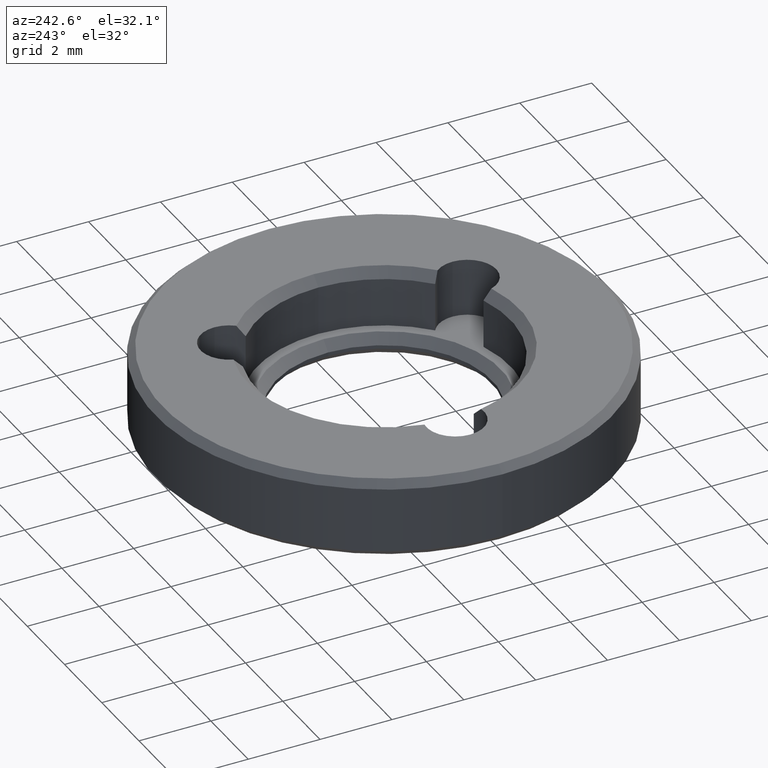
[diagram: clean part render]
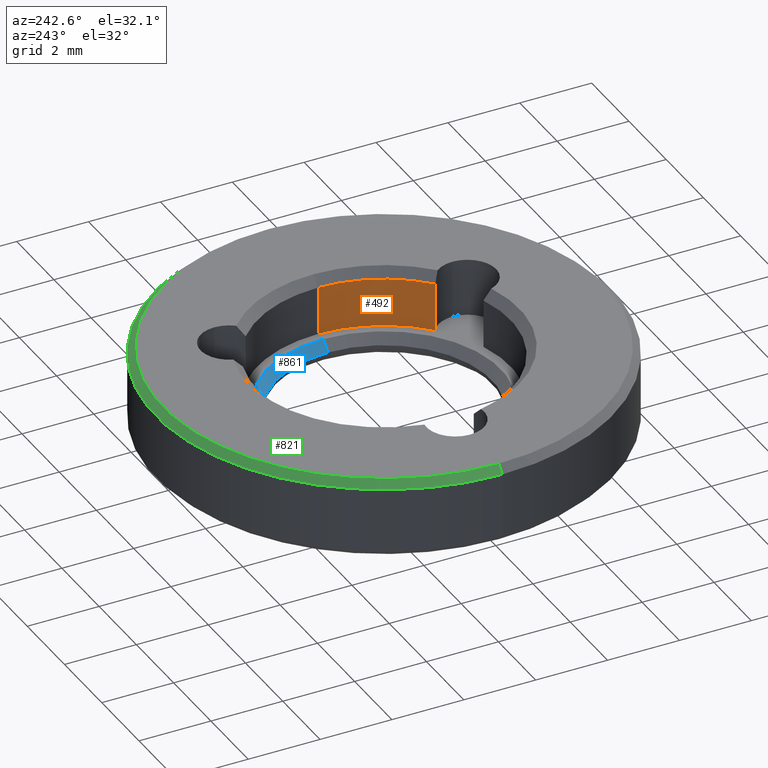
[diagram: same view with three faces highlighted in distinct colors, each labeled with its STEP entity id]
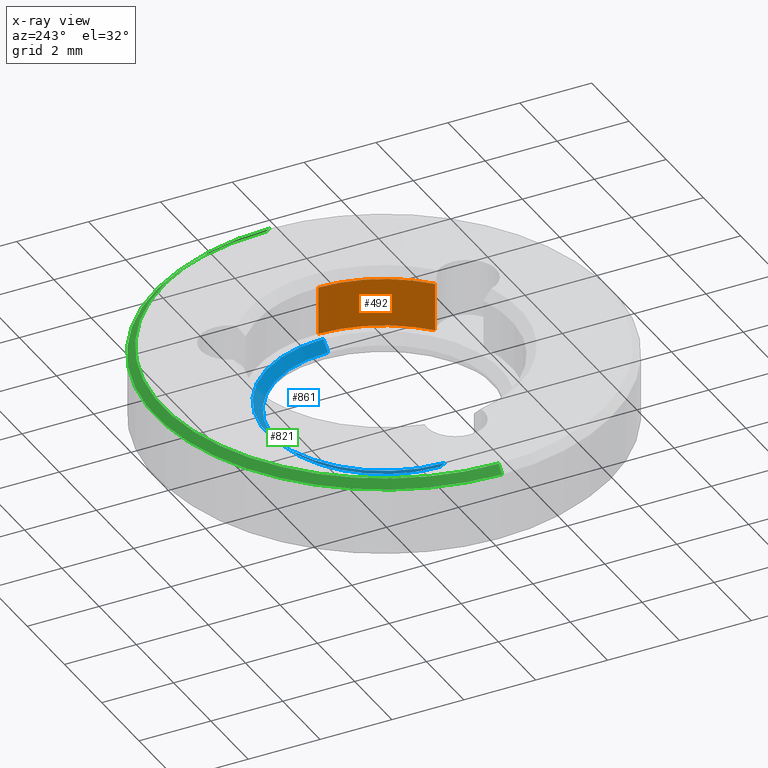
[diagram: x-ray of the same camera — body ghosted, the three highlighted faces saturated]
A machine part, auxiliary view with three faces highlighted in distinct colors.
The next image is the same camera in x-ray (body ghosted, the three faces saturated) — at least one of them is partly hidden behind the body in this view.
Their STEP definitions:

[orange] entity #492 — the highlighted cylindrical surface (partial cylindrical patch) has radius 3.525 mm, axis along (-0, -0, 1).
#5 = DIRECTION ( 'NONE',  ( -0.000000000000000000, -0.000000000000000000, 1.000000000000000000 ) ) ;
#32 = EDGE_LOOP ( 'NONE', ( #378, #752, #737, #315 ) ) ;
#66 = AXIS2_PLACEMENT_3D ( 'NONE', #629, #5, #797 ) ;
#74 = VERTEX_POINT ( 'NONE', #644 ) ;
#143 = DIRECTION ( 'NONE',  ( 0.000000000000000000, -0.000000000000000000, 1.000000000000000000 ) ) ;
#144 = EDGE_CURVE ( 'NONE', #773, #626, #501, .T. ) ;
#145 = CARTESIAN_POINT ( 'NONE',  ( 2.339961078470140343, -2.636324553473046617, 1.949999999999995959 ) ) ;
#154 = CARTESIAN_POINT ( 'NONE',  ( 2.339961078470140343, -2.636324553473046617, 1.400000000000000133 ) ) ;
#189 = CIRCLE ( 'NONE', #868, 3.524999999999999911 ) ;
#235 = CARTESIAN_POINT ( 'NONE',  ( 3.524999999999999911, 0.000000000000000000, 0.6000000000000000888 ) ) ;
#239 = CARTESIAN_POINT ( 'NONE',  ( 0.000000000000000000, 0.000000000000000000, 1.949999999999995959 ) ) ;
#263 = CARTESIAN_POINT ( 'NONE',  ( 0.000000000000000000, 0.000000000000000000, 0.6000000000000000888 ) ) ;
#277 = CARTESIAN_POINT ( 'NONE',  ( 3.524999999999999911, 0.000000000000000000, 0.6000000000000000888 ) ) ;
#282 = EDGE_CURVE ( 'NONE', #626, #74, #189, .T. ) ;
#291 = VERTEX_POINT ( 'NONE', #235 ) ;
#315 = ORIENTED_EDGE ( 'NONE', *, *, #282, .T. ) ;
#357 = DIRECTION ( 'NONE',  ( -0.000000000000000000, -0.000000000000000000, 1.000000000000000000 ) ) ;
#378 = ORIENTED_EDGE ( 'NONE', *, *, #481, .F. ) ;
#439 = EDGE_CURVE ( 'NONE', #773, #291, #760, .T. ) ;
#481 = EDGE_CURVE ( 'NONE', #291, #74, #639, .T. ) ;
#486 = CYLINDRICAL_SURFACE ( 'NONE', #66, 3.524999999999999911 ) ;
#492 = ADVANCED_FACE ( 'NONE', ( #799 ), #486, .F. ) ;
#494 = VECTOR ( 'NONE', #143, 1000.000000000000000 ) ;
#501 = LINE ( 'NONE', #154, #494 ) ;
#513 = DIRECTION ( 'NONE',  ( 0.000000000000000000, 0.000000000000000000, 1.000000000000000000 ) ) ;
#541 = DIRECTION ( 'NONE',  ( 0.000000000000000000, 0.000000000000000000, 1.000000000000000000 ) ) ;
#626 = VERTEX_POINT ( 'NONE', #145 ) ;
#629 = CARTESIAN_POINT ( 'NONE',  ( 0.000000000000000000, 0.000000000000000000, 0.6000000000000000888 ) ) ;
#639 = LINE ( 'NONE', #277, #740 ) ;
#644 = CARTESIAN_POINT ( 'NONE',  ( 3.524999999999999911, 0.000000000000000000, 1.949999999999995959 ) ) ;
#737 = ORIENTED_EDGE ( 'NONE', *, *, #144, .T. ) ;
#740 = VECTOR ( 'NONE', #357, 1000.000000000000000 ) ;
#747 = CARTESIAN_POINT ( 'NONE',  ( 2.339961078470140343, -2.636324553473046617, 0.6000000000000003109 ) ) ;
#752 = ORIENTED_EDGE ( 'NONE', *, *, #439, .F. ) ;
#760 = CIRCLE ( 'NONE', #777, 3.524999999999999911 ) ;
#773 = VERTEX_POINT ( 'NONE', #747 ) ;
#777 = AXIS2_PLACEMENT_3D ( 'NONE', #263, #541, #837 ) ;
#797 = DIRECTION ( 'NONE',  ( 1.000000000000000000, 0.000000000000000000, 0.000000000000000000 ) ) ;
#799 = FACE_OUTER_BOUND ( 'NONE', #32, .T. ) ;
#807 = DIRECTION ( 'NONE',  ( 1.000000000000000000, 0.000000000000000000, 0.000000000000000000 ) ) ;
#837 = DIRECTION ( 'NONE',  ( 1.000000000000000000, 0.000000000000000000, 0.000000000000000000 ) ) ;
#868 = AXIS2_PLACEMENT_3D ( 'NONE', #239, #513, #807 ) ;

[blue] entity #861 — the highlighted conical surface has half-angle 45 deg.
#4 = EDGE_CURVE ( 'NONE', #441, #583, #565, .T. ) ;
#82 = LINE ( 'NONE', #293, #319 ) ;
#83 = DIRECTION ( 'NONE',  ( 0.7071067811865524577, 0.000000000000000000, 0.7071067811865426878 ) ) ;
#92 = AXIS2_PLACEMENT_3D ( 'NONE', #718, #784, #432 ) ;
#160 = CIRCLE ( 'NONE', #512, 3.000000000000000444 ) ;
#170 = VECTOR ( 'NONE', #83, 1000.000000000000000 ) ;
#215 = CARTESIAN_POINT ( 'NONE',  ( 3.250000000000003109, 0.000000000000000000, 0.6000000000000000888 ) ) ;
#233 = ORIENTED_EDGE ( 'NONE', *, *, #4, .T. ) ;
#281 = CARTESIAN_POINT ( 'NONE',  ( -3.000000000000000444, 3.673940397442060361E-16, 0.3500000000000006994 ) ) ;
#293 = CARTESIAN_POINT ( 'NONE',  ( -3.000000000000000444, 3.673940397442060361E-16, 0.3500000000000006994 ) ) ;
#319 = VECTOR ( 'NONE', #560, 1000.000000000000000 ) ;
#337 = CONICAL_SURFACE ( 'NONE', #559, 3.000000000000000444, 0.7853981633974552734 ) ;
#338 = CARTESIAN_POINT ( 'NONE',  ( 0.000000000000000000, 0.000000000000000000, 0.3500000000000006994 ) ) ;
#340 = ORIENTED_EDGE ( 'NONE', *, *, #613, .F. ) ;
#347 = CARTESIAN_POINT ( 'NONE',  ( 3.000000000000000444, 0.000000000000000000, 0.3500000000000006994 ) ) ;
#432 = DIRECTION ( 'NONE',  ( 1.000000000000000000, 0.000000000000000000, 0.000000000000000000 ) ) ;
#441 = VERTEX_POINT ( 'NONE', #472 ) ;
#472 = CARTESIAN_POINT ( 'NONE',  ( 3.000000000000000444, 0.000000000000000000, 0.3500000000000006994 ) ) ;
#512 = AXIS2_PLACEMENT_3D ( 'NONE', #535, #530, #825 ) ;
#530 = DIRECTION ( 'NONE',  ( 0.000000000000000000, 0.000000000000000000, 1.000000000000000000 ) ) ;
#535 = CARTESIAN_POINT ( 'NONE',  ( 0.000000000000000000, 0.000000000000000000, 0.3500000000000006994 ) ) ;
#537 = EDGE_CURVE ( 'NONE', #664, #583, #585, .T. ) ;
#548 = FACE_OUTER_BOUND ( 'NONE', #845, .T. ) ;
#559 = AXIS2_PLACEMENT_3D ( 'NONE', #338, #843, #774 ) ;
#560 = DIRECTION ( 'NONE',  ( -0.7071067811865524577, 8.659560562354993255E-17, 0.7071067811865426878 ) ) ;
#565 = LINE ( 'NONE', #347, #170 ) ;
#583 = VERTEX_POINT ( 'NONE', #215 ) ;
#585 = CIRCLE ( 'NONE', #92, 3.250000000000003109 ) ;
#594 = ORIENTED_EDGE ( 'NONE', *, *, #537, .F. ) ;
#606 = VERTEX_POINT ( 'NONE', #281 ) ;
#613 = EDGE_CURVE ( 'NONE', #606, #664, #82, .T. ) ;
#652 = CARTESIAN_POINT ( 'NONE',  ( -3.250000000000003109, 3.980102097228901683E-16, 0.6000000000000000888 ) ) ;
#664 = VERTEX_POINT ( 'NONE', #652 ) ;
#685 = ORIENTED_EDGE ( 'NONE', *, *, #790, .F. ) ;
#718 = CARTESIAN_POINT ( 'NONE',  ( 0.000000000000000000, 0.000000000000000000, 0.6000000000000000888 ) ) ;
#774 = DIRECTION ( 'NONE',  ( 1.000000000000000000, 0.000000000000000000, 0.000000000000000000 ) ) ;
#784 = DIRECTION ( 'NONE',  ( -0.000000000000000000, -0.000000000000000000, -1.000000000000000000 ) ) ;
#790 = EDGE_CURVE ( 'NONE', #441, #606, #160, .T. ) ;
#825 = DIRECTION ( 'NONE',  ( 1.000000000000000000, 0.000000000000000000, 0.000000000000000000 ) ) ;
#843 = DIRECTION ( 'NONE',  ( 0.000000000000000000, 0.000000000000000000, 1.000000000000000000 ) ) ;
#845 = EDGE_LOOP ( 'NONE', ( #340, #685, #233, #594 ) ) ;
#861 = ADVANCED_FACE ( 'NONE', ( #548 ), #337, .F. ) ;

[green] entity #821 — the highlighted conical surface has half-angle 45 deg.
#21 = AXIS2_PLACEMENT_3D ( 'NONE', #623, #131, #475 ) ;
#59 = VERTEX_POINT ( 'NONE', #213 ) ;
#69 = ORIENTED_EDGE ( 'NONE', *, *, #299, .F. ) ;
#131 = DIRECTION ( 'NONE',  ( 0.000000000000000000, 0.000000000000000000, -1.000000000000000000 ) ) ;
#141 = EDGE_LOOP ( 'NONE', ( #69, #808, #661, #733 ) ) ;
#150 = CIRCLE ( 'NONE', #498, 6.349999999999999645 ) ;
#159 = CARTESIAN_POINT ( 'NONE',  ( 0.000000000000000000, 0.000000000000000000, 2.000000000000000444 ) ) ;
#213 = CARTESIAN_POINT ( 'NONE',  ( 6.149999999999999467, 7.654042494670954648E-16, 2.200000000000000178 ) ) ;
#217 = CIRCLE ( 'NONE', #739, 6.149999999999999467 ) ;
#296 = DIRECTION ( 'NONE',  ( 0.000000000000000000, 0.000000000000000000, -1.000000000000000000 ) ) ;
#299 = EDGE_CURVE ( 'NONE', #59, #308, #217, .T. ) ;
#308 = VERTEX_POINT ( 'NONE', #889 ) ;
#309 = DIRECTION ( 'NONE',  ( 0.000000000000000000, 0.000000000000000000, 1.000000000000000000 ) ) ;
#325 = LINE ( 'NONE', #609, #793 ) ;
#328 = DIRECTION ( 'NONE',  ( -0.7071067811865490160, 0.000000000000000000, -0.7071067811865459074 ) ) ;
#352 = CARTESIAN_POINT ( 'NONE',  ( 6.149999999999999467, 7.531577814756219106E-16, 2.200000000000000178 ) ) ;
#421 = LINE ( 'NONE', #352, #618 ) ;
#426 = EDGE_CURVE ( 'NONE', #308, #886, #325, .T. ) ;
#436 = DIRECTION ( 'NONE',  ( 1.000000000000000000, 0.000000000000000000, 0.000000000000000000 ) ) ;
#475 = DIRECTION ( 'NONE',  ( -1.000000000000000000, 0.000000000000000000, 0.000000000000000000 ) ) ;
#498 = AXIS2_PLACEMENT_3D ( 'NONE', #159, #296, #436 ) ;
#524 = CARTESIAN_POINT ( 'NONE',  ( 6.349999999999999645, 7.776507174585692163E-16, 2.000000000000000444 ) ) ;
#591 = DIRECTION ( 'NONE',  ( 1.000000000000000000, 0.000000000000000000, 0.000000000000000000 ) ) ;
#592 = CARTESIAN_POINT ( 'NONE',  ( -6.349999999999999645, 0.000000000000000000, 2.000000000000000444 ) ) ;
#609 = CARTESIAN_POINT ( 'NONE',  ( -6.149999999999999467, 0.000000000000000000, 2.200000000000000178 ) ) ;
#616 = FACE_OUTER_BOUND ( 'NONE', #141, .T. ) ;
#618 = VECTOR ( 'NONE', #715, 1000.000000000000000 ) ;
#623 = CARTESIAN_POINT ( 'NONE',  ( 0.000000000000000000, 0.000000000000000000, 2.200000000000000178 ) ) ;
#628 = EDGE_CURVE ( 'NONE', #59, #751, #421, .T. ) ;
#661 = ORIENTED_EDGE ( 'NONE', *, *, #750, .F. ) ;
#663 = CARTESIAN_POINT ( 'NONE',  ( 0.000000000000000000, 0.000000000000000000, 2.200000000000000178 ) ) ;
#715 = DIRECTION ( 'NONE',  ( 0.7071067811865490160, 8.659560562354950115E-17, -0.7071067811865459074 ) ) ;
#727 = CONICAL_SURFACE ( 'NONE', #21, 6.149999999999999467, 0.7853981633974503884 ) ;
#733 = ORIENTED_EDGE ( 'NONE', *, *, #426, .F. ) ;
#739 = AXIS2_PLACEMENT_3D ( 'NONE', #663, #309, #591 ) ;
#750 = EDGE_CURVE ( 'NONE', #886, #751, #150, .T. ) ;
#751 = VERTEX_POINT ( 'NONE', #524 ) ;
#793 = VECTOR ( 'NONE', #328, 1000.000000000000000 ) ;
#808 = ORIENTED_EDGE ( 'NONE', *, *, #628, .T. ) ;
#821 = ADVANCED_FACE ( 'NONE', ( #616 ), #727, .T. ) ;
#886 = VERTEX_POINT ( 'NONE', #592 ) ;
#889 = CARTESIAN_POINT ( 'NONE',  ( -6.149999999999999467, 0.000000000000000000, 2.200000000000000178 ) ) ;